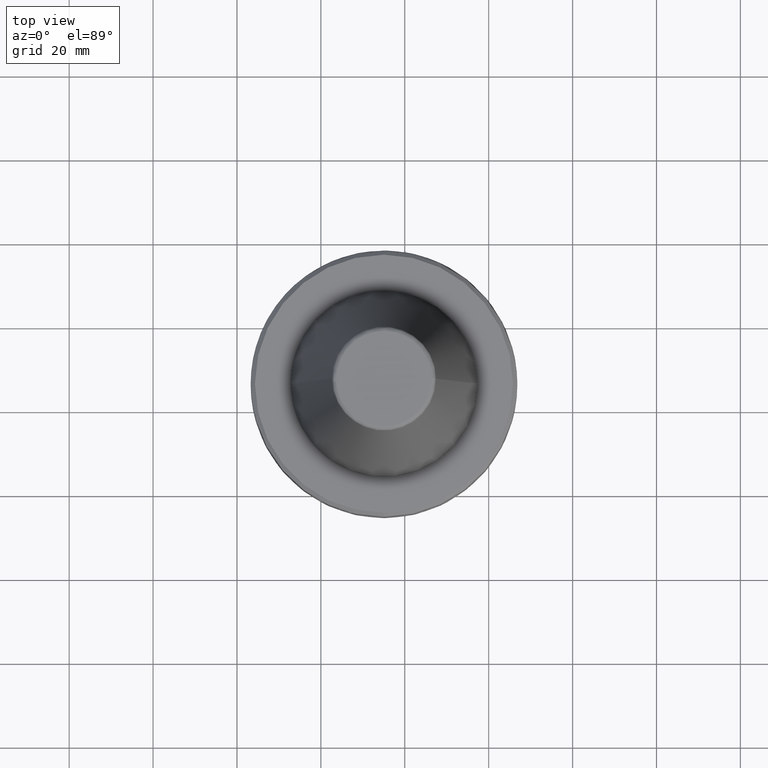
[diagram: clean part render]
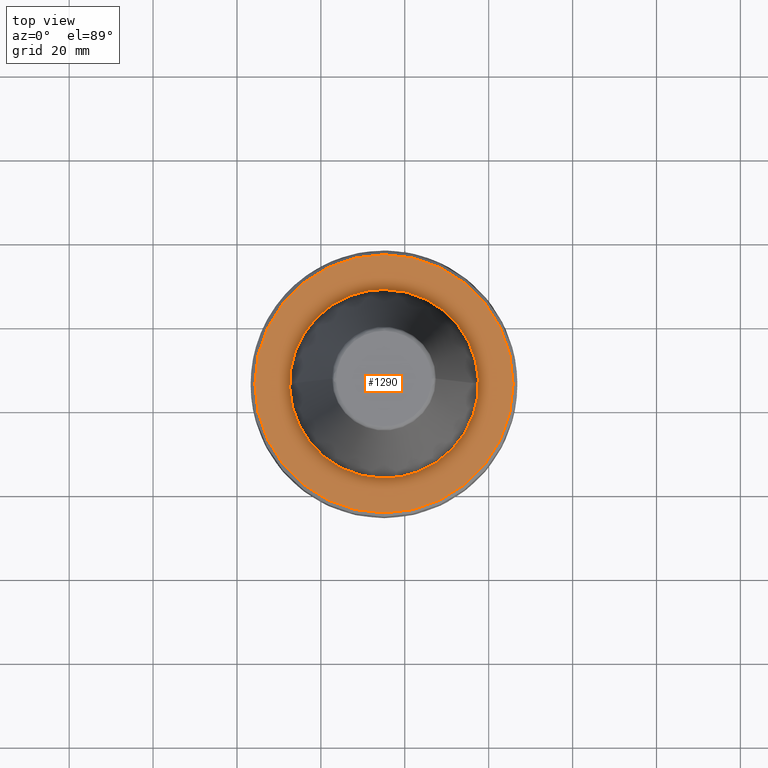
[diagram: same view with one face highlighted and labeled with its STEP entity id]
A machine part, top view. The second image highlights one B-rep face of the part: STEP entity #1290.
In plain terms, the highlighted planar face has unit normal (0, 0, 1).
Its self-contained STEP definition (entity closure, byte-faithful):
#13 = CARTESIAN_POINT ( 'NONE',  ( 62.65414962086474300, 104.2742380259395000, 81.22314626776783100 ) ) ;
#17 = CARTESIAN_POINT ( 'NONE',  ( 62.57152769368608600, 104.2194762248058000, 81.22314626776781700 ) ) ;
#20 = CARTESIAN_POINT ( 'NONE',  ( 89.85767928308449400, 102.5018107672655700, 81.22314626776781700 ) ) ;
#33 = CARTESIAN_POINT ( 'NONE',  ( 63.36992866175331300, 104.7422232382779900, 81.22314626776781700 ) ) ;
#38 = CARTESIAN_POINT ( 'NONE',  ( 85.74092440338276300, 65.67248165962247700, 81.22314626776781700 ) ) ;
#42 = CARTESIAN_POINT ( 'NONE',  ( 88.65794660298517700, 103.4764811899254100, 81.22314626776784500 ) ) ;
#47 = CARTESIAN_POINT ( 'NONE',  ( 66.14891919386136000, 106.1616709498853600, 81.22314626776783100 ) ) ;
#53 = CARTESIAN_POINT ( 'NONE',  ( 87.27688033553640400, 104.3793460824247600, 81.22314626776780200 ) ) ;
#58 = CARTESIAN_POINT ( 'NONE',  ( 84.54997982542086300, 65.09328505467739500, 81.22314626776780200 ) ) ;
#61 = CARTESIAN_POINT ( 'NONE',  ( 87.19870504752289300, 104.4297407762452400, 81.22314626776781700 ) ) ;
#73 = CARTESIAN_POINT ( 'NONE',  ( 83.03059843001516100, 106.5297493338346200, 81.22314626776781700 ) ) ;
#77 = CARTESIAN_POINT ( 'NONE',  ( 66.45537527121696500, 106.2897323070185500, 81.22314626776781700 ) ) ;
#83 = CARTESIAN_POINT ( 'NONE',  ( 86.72187149139439600, 66.24545152261605100, 81.22314626776783100 ) ) ;
#86 = CARTESIAN_POINT ( 'NONE',  ( 64.35087574976535100, 105.3151931012726100, 81.22314626776781700 ) ) ;
#87 = CARTESIAN_POINT ( 'NONE',  ( 87.03846741827089800, 104.5316473161180400, 81.22314626776783100 ) ) ;
#98 = CARTESIAN_POINT ( 'NONE',  ( 65.54182032772695300, 105.8943897062170800, 81.22314626776781700 ) ) ;
#107 = CARTESIAN_POINT ( 'NONE',  ( 86.79728782535725900, 104.6829092724205900, 81.22314626776780200 ) ) ;
#108 = FACE_OUTER_BOUND ( 'NONE', #866, .T. ) ;
#122 = CARTESIAN_POINT ( 'NONE',  ( 87.43765053228240400, 66.71343673495299200, 81.22314626776783100 ) ) ;
#130 = CARTESIAN_POINT ( 'NONE',  ( 84.03483348157212200, 106.1342762753817700, 81.22314626776783100 ) ) ;
#146 = FACE_BOUND ( 'NONE', #1366, .T. ) ;
#151 = CARTESIAN_POINT ( 'NONE',  ( 86.22877339864291500, 105.0246688625809800, 81.22314626776780200 ) ) ;
#153 = CARTESIAN_POINT ( 'NONE',  ( 87.52027245946560200, 66.76819853608952800, 81.22314626776784500 ) ) ;
#157 = CARTESIAN_POINT ( 'NONE',  ( 85.06869637221731800, 105.6634481447191700, 81.22314626776780200 ) ) ;
#159 = CARTESIAN_POINT ( 'NONE',  ( 94.29428593441034000, 97.16980879525721100, 81.22314626776783100 ) ) ;
#162 = CARTESIAN_POINT ( 'NONE',  ( 87.68123995878909200, 66.87641132573394000, 81.22314626776781700 ) ) ;
#173 = CARTESIAN_POINT ( 'NONE',  ( 83.24316371892003000, 106.4475224019299600, 81.22314626776781700 ) ) ;
#180 = CARTESIAN_POINT ( 'NONE',  ( 83.28385588922472500, 106.4315615217865900, 81.22314626776783100 ) ) ;
#184 = EDGE_CURVE ( 'NONE', #194, #2624, #2111, .T. ) ;
#194 = VERTEX_POINT ( 'NONE', #493 ) ;
#201 = CARTESIAN_POINT ( 'NONE',  ( 83.15818297271984200, 106.4805724532110200, 81.22314626776784500 ) ) ;
#218 = CARTESIAN_POINT ( 'NONE',  ( 82.73210719987319800, 106.6417080145375100, 81.22314626776784500 ) ) ;
#229 = CARTESIAN_POINT ( 'NONE',  ( 82.13194888426490100, 106.8544758796008300, 81.22314626776778800 ) ) ;
#240 = VERTEX_POINT ( 'NONE', #1025 ) ;
#243 = CARTESIAN_POINT ( 'NONE',  ( 80.91892883175124500, 107.2354136243585300, 81.22314626776780200 ) ) ;
#255 = CARTESIAN_POINT ( 'NONE',  ( 79.09777183775845800, 107.6260032095905200, 81.22314626776781700 ) ) ;
#262 = CARTESIAN_POINT ( 'NONE',  ( 79.85742006451586400, 107.4854780020894200, 81.22314626776780200 ) ) ;
#270 = CARTESIAN_POINT ( 'NONE',  ( 93.82630072206613600, 97.88558783615641800, 81.22314626776783100 ) ) ;
#281 = CARTESIAN_POINT ( 'NONE',  ( 79.11765152745096000, 107.6223559875607700, 81.22314626776781700 ) ) ;
#310 = CARTESIAN_POINT ( 'NONE',  ( 66.72137537264596600, 106.3972897344154900, 81.22314626776784500 ) ) ;
#328 = CARTESIAN_POINT ( 'NONE',  ( 79.05546663607198400, 107.6337065430116600, 81.22314626776783100 ) ) ;
#336 = CARTESIAN_POINT ( 'NONE',  ( 66.58733644243112300, 106.3434201890682000, 81.22314626776778800 ) ) ;
#340 = CARTESIAN_POINT ( 'NONE',  ( 68.47428908315963300, 107.0345546644794700, 81.22314626776780200 ) ) ;
#347 = CARTESIAN_POINT ( 'NONE',  ( 66.67544896820670900, 106.3789464311632100, 81.22314626776781700 ) ) ;
#352 = CARTESIAN_POINT ( 'NONE',  ( 67.44206893199977100, 106.6826248733195500, 81.22314626776780200 ) ) ;
#353 = CARTESIAN_POINT ( 'NONE',  ( 70.99402831538904500, 63.36167155130206700, 81.22314626776781700 ) ) ;
#364 = CARTESIAN_POINT ( 'NONE',  ( 77.95335832831419500, 107.8099355794101200, 81.22314626776781700 ) ) ;
#385 = CARTESIAN_POINT ( 'NONE',  ( 70.23438008863659800, 63.50219675880115500, 81.22314626776781700 ) ) ;
#394 = CARTESIAN_POINT ( 'NONE',  ( 88.47382798724409300, 67.43248580029808200, 81.22314626776781700 ) ) ;
#395 = CARTESIAN_POINT ( 'NONE',  ( 69.70439416171734600, 107.3560709180702200, 81.22314626776781700 ) ) ;
#402 = CARTESIAN_POINT ( 'NONE',  ( 72.13844182484015700, 63.17773918148252200, 81.22314626776781700 ) ) ;
#403 = CARTESIAN_POINT ( 'NONE',  ( 78.99200054994412300, 107.6451698367929600, 81.22314626776781700 ) ) ;
#404 = CARTESIAN_POINT ( 'NONE',  ( 70.63828157368345700, 107.5582406383046200, 81.22314626776781700 ) ) ;
#410 = CARTESIAN_POINT ( 'NONE',  ( 70.90688553795595800, 107.6098733288288400, 81.22314626776781700 ) ) ;
#414 = CARTESIAN_POINT ( 'NONE',  ( 78.84385503045882600, 107.6712755778310300, 81.22314626776784500 ) ) ;
#417 = CARTESIAN_POINT ( 'NONE',  ( 70.86206852708878000, 107.6014390810272700, 81.22314626776781700 ) ) ;
#420 = CARTESIAN_POINT ( 'NONE',  ( 71.54446810241067600, 63.26675547879256800, 81.22314626776780200 ) ) ;
#421 = CARTESIAN_POINT ( 'NONE',  ( 73.66951177041258300, 107.9938373804463400, 81.22314626776781700 ) ) ;
#427 = CARTESIAN_POINT ( 'NONE',  ( 76.76169983150013800, 107.9468837291179400, 81.22314626776781700 ) ) ;
#442 = CARTESIAN_POINT ( 'NONE',  ( 75.04590007657358800, 62.99383738044630800, 81.22314626776780200 ) ) ;
#443 = CARTESIAN_POINT ( 'NONE',  ( 78.54733205074066400, 107.7209192821000700, 81.22314626776781700 ) ) ;
#445 = CARTESIAN_POINT ( 'NONE',  ( 75.73391645944066400, 107.9938373804463500, 81.22314626776783100 ) ) ;
#447 = CARTESIAN_POINT ( 'NONE',  ( 70.32590875988069000, 107.4945619191749600, 81.22314626776781700 ) ) ;
#458 = CARTESIAN_POINT ( 'NONE',  ( 72.30478887732149900, 107.8686276435706500, 81.22314626776781700 ) ) ;
#471 = CARTESIAN_POINT ( 'NONE',  ( 75.04590007657358800, 107.9938373804463200, 81.22314626776780200 ) ) ;
#487 = CARTESIAN_POINT ( 'NONE',  ( 75.04590007657358800, 107.9938373804463200, 81.22314626776780200 ) ) ;
#493 = CARTESIAN_POINT ( 'NONE',  ( 75.04590007657358800, 62.99383738044630800, 81.22314626776780200 ) ) ;
#498 = CARTESIAN_POINT ( 'NONE',  ( 70.93058987417499800, 107.6142953655418600, 81.22314626776780200 ) ) ;
#564 = CARTESIAN_POINT ( 'NONE',  ( 87.92150577537155700, 67.04018314178205200, 81.22314626776781700 ) ) ;
#608 = CARTESIAN_POINT ( 'NONE',  ( 56.16039137459461700, 97.72481763940734800, 81.22314626776780200 ) ) ;
#614 = CARTESIAN_POINT ( 'NONE',  ( 67.95985126888922400, 64.13319888128906100, 81.22314626776781700 ) ) ;
#618 = CARTESIAN_POINT ( 'NONE',  ( 57.06325626710312100, 99.10588390688654700, 81.22314626776785900 ) ) ;
#621 = CARTESIAN_POINT ( 'NONE',  ( 58.03792668970279300, 100.3056165869256800, 81.22314626776783100 ) ) ;
#643 = CARTESIAN_POINT ( 'NONE',  ( 92.05387346340724300, 70.68205817394483900, 81.22314626776784500 ) ) ;
#653 = CARTESIAN_POINT ( 'NONE',  ( 89.54528030371022900, 68.25776480161239600, 81.22314626776784500 ) ) ;
#667 = CARTESIAN_POINT ( 'NONE',  ( 90.40676724820276900, 69.03487311865109200, 81.22314626776781700 ) ) ;
#738 = CARTESIAN_POINT ( 'NONE',  ( 93.02854388608821500, 71.88179085406528700, 81.22314626776783100 ) ) ;
#758 = ORIENTED_EDGE ( 'NONE', *, *, #2819, .F. ) ;
#762 = EDGE_CURVE ( 'NONE', #240, #2336, #963, .T. ) ;
#788 = CARTESIAN_POINT ( 'NONE',  ( 93.98180347237180900, 73.34103240949876600, 81.22314626776778800 ) ) ;
#795 = DIRECTION ( 'NONE',  ( -1.000000000000000000, 0.0000000000000000000, 0.0000000000000000000 ) ) ;
#797 = DIRECTION ( 'NONE',  ( -0.0000000000000000000, -0.0000000000000000000, -1.000000000000000000 ) ) ;
#799 = CARTESIAN_POINT ( 'NONE',  ( 93.93140877854980900, 73.26285712148157400, 81.22314626776780200 ) ) ;
#806 = CARTESIAN_POINT ( 'NONE',  ( 75.04590007657358800, 85.49383738044632300, 81.22314626776777400 ) ) ;
#813 = CARTESIAN_POINT ( 'NONE',  ( 67.06120172313417500, 64.45792542705717700, 81.22314626776780200 ) ) ;
#815 = CARTESIAN_POINT ( 'NONE',  ( 53.68526157740659200, 92.57988618809807200, 81.22314626776780200 ) ) ;
#829 = CARTESIAN_POINT ( 'NONE',  ( 66.93361718042861200, 64.50710230768118000, 81.22314626776781700 ) ) ;
#866 = EDGE_LOOP ( 'NONE', ( #758, #2158 ) ) ;
#900 = CARTESIAN_POINT ( 'NONE',  ( 94.57673155870450900, 74.31096405838651700, 81.22314626776781700 ) ) ;
#908 = DIRECTION ( 'NONE',  ( -0.0000000000000000000, -0.0000000000000000000, -1.000000000000000000 ) ) ;
#913 = CARTESIAN_POINT ( 'NONE',  ( 94.23497196854566500, 73.74244963166823700, 81.22314626776781700 ) ) ;
#926 = CARTESIAN_POINT ( 'NONE',  ( 95.21551084084144600, 75.47104108481528300, 81.22314626776781700 ) ) ;
#963 = CIRCLE ( 'NONE', #2142, 30.77499999995865600 ) ;
#980 = CARTESIAN_POINT ( 'NONE',  ( 94.08371001224391300, 73.50127003875239500, 81.22314626776781700 ) ) ;
#990 = CARTESIAN_POINT ( 'NONE',  ( 95.68633897150616000, 76.50490397545506500, 81.22314626776781700 ) ) ;
#1001 = CARTESIAN_POINT ( 'NONE',  ( 75.04590007657358800, 85.49383738044632300, 81.22314626776777400 ) ) ;
#1010 = AXIS2_PLACEMENT_3D ( 'NONE', #1001, #908, #2462 ) ;
#1025 = CARTESIAN_POINT ( 'NONE',  ( 75.04590007657358800, 54.71883738048766300, 81.22314626776777400 ) ) ;
#1058 = CARTESIAN_POINT ( 'NONE',  ( 95.98362421791401300, 77.25588156779474500, 81.22314626776781700 ) ) ;
#1130 = CARTESIAN_POINT ( 'NONE',  ( 95.99958509805588800, 77.29657373809475000, 81.22314626776784500 ) ) ;
#1139 = ORIENTED_EDGE ( 'NONE', *, *, #3070, .T. ) ;
#1144 = CARTESIAN_POINT ( 'NONE',  ( 96.03263514933560400, 77.38155448428999300, 81.22314626776781700 ) ) ;
#1173 = CARTESIAN_POINT ( 'NONE',  ( 71.09979960320424700, 63.34250492409965000, 81.22314626776780200 ) ) ;
#1177 = CARTESIAN_POINT ( 'NONE',  ( 74.35788369371194100, 62.99383738044632300, 81.22314626776781700 ) ) ;
#1192 = CARTESIAN_POINT ( 'NONE',  ( 93.77153892092924500, 97.96820976334011300, 81.22314626776783100 ) ) ;
#1237 = CARTESIAN_POINT ( 'NONE',  ( 93.66332613128382400, 98.12917726266519500, 81.22314626776781700 ) ) ;
#1251 = CARTESIAN_POINT ( 'NONE',  ( 70.97414862569606000, 63.36531877333190000, 81.22314626776781700 ) ) ;
#1290 = ADVANCED_FACE ( 'NONE', ( #146, #108 ), #2846, .T. ) ;
#1291 = CARTESIAN_POINT ( 'NONE',  ( 96.19377071065622400, 77.80763025711452500, 81.22314626776781700 ) ) ;
#1323 = CARTESIAN_POINT ( 'NONE',  ( 54.25000515000083100, 76.90331257509005500, 81.22314626776784500 ) ) ;
#1347 = CARTESIAN_POINT ( 'NONE',  ( 96.08181202995726300, 77.50913902698746900, 81.22314626776783100 ) ) ;
#1366 = EDGE_LOOP ( 'NONE', ( #3112, #1139 ) ) ;
#1422 = CARTESIAN_POINT ( 'NONE',  ( 96.40653857571348300, 78.40778857269977200, 81.22314626776780200 ) ) ;
#1435 = CARTESIAN_POINT ( 'NONE',  ( 75.04590007657358800, 107.9938373804463200, 81.22314626776780200 ) ) ;
#1466 = CARTESIAN_POINT ( 'NONE',  ( 67.35969295327808500, 64.34596674635362500, 81.22314626776781700 ) ) ;
#1508 = CARTESIAN_POINT ( 'NONE',  ( 52.95104915450591000, 81.24280916313884400, 81.22314626776781700 ) ) ;
#1522 = CARTESIAN_POINT ( 'NONE',  ( 53.04517553784430100, 80.77384606375690600, 81.22314626776780200 ) ) ;
#1524 = CARTESIAN_POINT ( 'NONE',  ( 52.93829837599255200, 81.31000583096209800, 81.22314626776783100 ) ) ;
#1533 = CARTESIAN_POINT ( 'NONE',  ( 52.92986412819104200, 81.35482284182899100, 81.22314626776783100 ) ) ;
#1536 = CARTESIAN_POINT ( 'NONE',  ( 96.78747632046629700, 79.62080862519498200, 81.22314626776780200 ) ) ;
#1550 = CARTESIAN_POINT ( 'NONE',  ( 70.79487185926514300, 107.5886883025138000, 81.22314626776781700 ) ) ;
#1564 = CARTESIAN_POINT ( 'NONE',  ( 52.67114225968574500, 82.75255086885809400, 81.22314626776784500 ) ) ;
#1567 = CARTESIAN_POINT ( 'NONE',  ( 52.98149681871490900, 81.08621887755808200, 81.22314626776783100 ) ) ;
#1600 = CARTESIAN_POINT ( 'NONE',  ( 97.17441868368844400, 81.42208592957030100, 81.22314626776781700 ) ) ;
#1608 = CARTESIAN_POINT ( 'NONE',  ( 52.54588386177716300, 86.18176612906810900, 81.22314626776784500 ) ) ;
#1610 = CARTESIAN_POINT ( 'NONE',  ( 97.22334492455746600, 81.69591837027438400, 81.22314626776780200 ) ) ;
#1621 = CARTESIAN_POINT ( 'NONE',  ( 97.03754069820558900, 80.68231739246201100, 81.22314626776783100 ) ) ;
#1631 = CARTESIAN_POINT ( 'NONE',  ( 52.72978059568943400, 88.40118061223994100, 81.22314626776778800 ) ) ;
#1642 = CARTESIAN_POINT ( 'NONE',  ( 93.49955431523429200, 98.36944307924980500, 81.22314626776781700 ) ) ;
#1664 = CARTESIAN_POINT ( 'NONE',  ( 71.03633351707588900, 63.35396821788103200, 81.22314626776784500 ) ) ;
#1669 = CARTESIAN_POINT ( 'NONE',  ( 97.17806691122514500, 81.44197105360856900, 81.22314626776781700 ) ) ;
#1676 = CARTESIAN_POINT ( 'NONE',  ( 52.54593250616644400, 84.11797988320272200, 81.22314626776783100 ) ) ;
#1687 = CARTESIAN_POINT ( 'NONE',  ( 52.92544158450557700, 81.37852991730297000, 81.22314626776781700 ) ) ;
#1814 = CARTESIAN_POINT ( 'NONE',  ( 97.19723596906314400, 81.54775547799432900, 81.22314626776780200 ) ) ;
#1834 = CARTESIAN_POINT ( 'NONE',  ( 52.90602892674565500, 89.50339319961483400, 81.22314626776783100 ) ) ;
#1849 = CARTESIAN_POINT ( 'NONE',  ( 97.18577122640131400, 81.48428156127181400, 81.22314626776783100 ) ) ;
#1859 = CARTESIAN_POINT ( 'NONE',  ( 97.27299439267912400, 81.99247250121067100, 81.22314626776781700 ) ) ;
#1873 = CARTESIAN_POINT ( 'NONE',  ( 97.36201955745477200, 82.58649414858821600, 81.22314626776781700 ) ) ;
#1885 = CARTESIAN_POINT ( 'NONE',  ( 63.29451232781436700, 66.30476548846229400, 81.22314626776780200 ) ) ;
#1909 = CARTESIAN_POINT ( 'NONE',  ( 66.80794426392047600, 64.55611323910685000, 81.22314626776781700 ) ) ;
#1918 = AXIS2_PLACEMENT_3D ( 'NONE', #2789, #2858, #2752 ) ;
#1950 = CARTESIAN_POINT ( 'NONE',  ( 52.86845522858880700, 89.29175639059812400, 81.22314626776781700 ) ) ;
#1964 = CARTESIAN_POINT ( 'NONE',  ( 52.91373324192197500, 89.54570370728104900, 81.22314626776783100 ) ) ;
#1985 = CARTESIAN_POINT ( 'NONE',  ( 97.49897480113503400, 83.77819098536306800, 81.22314626776781700 ) ) ;
#2001 = CARTESIAN_POINT ( 'NONE',  ( 97.14075099864244600, 89.74486559775067500, 81.22314626776781700 ) ) ;
#2026 = CARTESIAN_POINT ( 'NONE',  ( 52.89456418408355600, 89.43991928288787100, 81.22314626776780200 ) ) ;
#2028 = CARTESIAN_POINT ( 'NONE',  ( 97.54591629136774600, 84.80590863177542400, 81.22314626776780200 ) ) ;
#2062 = CARTESIAN_POINT ( 'NONE',  ( 52.81880576046630400, 88.99520225964435800, 81.22314626776780200 ) ) ;
#2063 = CARTESIAN_POINT ( 'NONE',  ( 52.91738146945942800, 89.56558883132461800, 81.22314626776783100 ) ) ;
#2074 = CARTESIAN_POINT ( 'NONE',  ( 97.42065789346594300, 88.23512389198211300, 81.22314626776783100 ) ) ;
#2111 = B_SPLINE_CURVE_WITH_KNOTS ( 'NONE', 3,
 ( #442, #1177, #2877, #402, #420, #2257, #1173, #1664, #353, #1251, #385, #2957, #614, #1466, #813, #829, #2273, #1909, #2550, #2125, #2719, #1885, #2120, #2644, #3059, #2926, #2476, #2499, #2178, #2429, #2712, #2732, #2764, #2832, #2220, #2238, #2511, #2626, #1323, #2754, #2965, #2226, #2258, #2314, #2786, #1522, #1567, #1508, #1524, #1533, #1687, #1564, #1676, #1608, #2577, #1631, #2062, #1950, #2026, #1834, #1964, #2063, #2322, #3127, #815, #3111, #3115, #3124, #3133, #3146, #3150, #3154, #3159, #3161, #3163, #3169, #608, #618, #621, #3172, #3180, #3183, #3192, #3197, #17, #13, #33, #86, #98, #47, #77, #336, #347, #310, #352, #340, #395, #447, #404, #1550, #417, #410, #498, #458, #421, #487 ),
 .UNSPECIFIED., .F., .F.,
 ( 4, 1, 1, 1, 1, 1, 2, 2, 1, 1, 1, 1, 2, 2, 1, 1, 1, 2, 2, 2, 1, 1, 1, 2, 2, 1, 1, 1, 1, 2, 2, 1, 1, 1, 1, 1, 2, 2, 2, 1, 1, 1, 1, 1, 2, 2, 1, 1, 1, 1, 2, 2, 1, 1, 1, 2, 2, 2, 1, 1, 1, 2, 2, 1, 1, 1, 1, 2, 2, 1, 1, 1, 1, 1, 2, 2, 4 ),
 ( 0.0000000000000000000, 0.03124999999997436100, 0.04687499999996154500, 0.05468749999995509100, 0.05859374999995186500, 0.06054687499995030400, 0.06152343749994957500, 0.06249999999994886000, 0.09374999999994070000, 0.1093749999999367200, 0.1171874999999350000, 0.1210937499999341400, 0.1230468749999335300, 0.1249999999999329400, 0.1562499999999209000, 0.1718749999999150100, 0.1796874999999116800, 0.1835937499999096300, 0.1874999999999075500, 0.2499999999998742700, 0.2812499999998577800, 0.2968749999998492300, 0.3046874999998450100, 0.3085937499998430100, 0.3124999999998410200, 0.3437499999998276900, 0.3593749999998210300, 0.3671874999998177000, 0.3710937499998160900, 0.3730468749998155400, 0.3749999999998149800, 0.4062499999998113700, 0.4218749999998095400, 0.4296874999998088800, 0.4335937499998085400, 0.4355468749998084300, 0.4365234374998080400, 0.4374999999998077100, 0.4999999999998112600, 0.5312499999998133700, 0.5468749999998144800, 0.5546874999998149300, 0.5585937499998151500, 0.5605468749998152600, 0.5615234374998149300, 0.5624999999998147000, 0.5937499999998223600, 0.6093749999998262500, 0.6171874999998281400, 0.6210937499998288000, 0.6230468749998295800, 0.6249999999998302500, 0.6562499999998467900, 0.6718749999998551200, 0.6796874999998590000, 0.6835937499998606700, 0.6874999999998623300, 0.7499999999998847600, 0.7812499999998961900, 0.7968749999999015200, 0.8046874999999041900, 0.8085937499999055200, 0.8124999999999069600, 0.8437499999999171800, 0.8593749999999221700, 0.8671874999999246200, 0.8710937499999262800, 0.8730468749999273900, 0.8749999999999286100, 0.9062499999999451500, 0.9218749999999532600, 0.9296874999999574800, 0.9335937499999594800, 0.9355468749999604800, 0.9365234374999613600, 0.9374999999999622500, 1.000000000000000000 ),
 .UNSPECIFIED. ) ;
#2120 = CARTESIAN_POINT ( 'NONE',  ( 63.05333273489105700, 66.45602744476882200, 81.22314626776783100 ) ) ;
#2125 = CARTESIAN_POINT ( 'NONE',  ( 65.02310378098580700, 65.32422661615122200, 81.22314626776781700 ) ) ;
#2135 = CARTESIAN_POINT ( 'NONE',  ( 93.10725165671564700, 98.92176529112629200, 81.22314626776781700 ) ) ;
#2142 = AXIS2_PLACEMENT_3D ( 'NONE', #806, #797, #795 ) ;
#2157 = CARTESIAN_POINT ( 'NONE',  ( 97.16635856864151300, 89.60914484359048500, 81.22314626776783100 ) ) ;
#2158 = ORIENTED_EDGE ( 'NONE', *, *, #762, .F. ) ;
#2173 = CARTESIAN_POINT ( 'NONE',  ( 97.54586764698524300, 86.86969487778819100, 81.22314626776783100 ) ) ;
#2178 = CARTESIAN_POINT ( 'NONE',  ( 57.80982749774068500, 70.99445715331306400, 81.22314626776780200 ) ) ;
#2220 = CARTESIAN_POINT ( 'NONE',  ( 55.79751421874055900, 73.81786596562702100, 81.22314626776784500 ) ) ;
#2226 = CARTESIAN_POINT ( 'NONE',  ( 54.14244772260449400, 77.16931267651837300, 81.22314626776781700 ) ) ;
#2238 = CARTESIAN_POINT ( 'NONE',  ( 55.22454435574487500, 74.79881305363973400, 81.22314626776780200 ) ) ;
#2257 = CARTESIAN_POINT ( 'NONE',  ( 71.24794512269059500, 63.31639918306164800, 81.22314626776784500 ) ) ;
#2258 = CARTESIAN_POINT ( 'NONE',  ( 53.85711258369952500, 77.89000623587712400, 81.22314626776783100 ) ) ;
#2273 = CARTESIAN_POINT ( 'NONE',  ( 66.84863643422787000, 64.54015235896241600, 81.22314626776784500 ) ) ;
#2279 = CARTESIAN_POINT ( 'NONE',  ( 75.04590007657358800, 116.2688373804049700, 81.22314626776777400 ) ) ;
#2314 = CARTESIAN_POINT ( 'NONE',  ( 53.50518279253892500, 78.92222638704041100, 81.22314626776780200 ) ) ;
#2322 = CARTESIAN_POINT ( 'NONE',  ( 53.05425945492100200, 90.30535736835844300, 81.22314626776781700 ) ) ;
#2336 = VERTEX_POINT ( 'NONE', #2279 ) ;
#2357 = CARTESIAN_POINT ( 'NONE',  ( 97.16193602495653200, 89.63285191906274500, 81.22314626776781700 ) ) ;
#2422 = CARTESIAN_POINT ( 'NONE',  ( 92.28197265539928700, 99.99321760759549700, 81.22314626776778800 ) ) ;
#2429 = CARTESIAN_POINT ( 'NONE',  ( 56.98454849642615700, 72.06590946977829000, 81.22314626776781700 ) ) ;
#2462 = DIRECTION ( 'NONE',  ( -1.000000000000000000, 0.0000000000000000000, 0.0000000000000000000 ) ) ;
#2476 = CARTESIAN_POINT ( 'NONE',  ( 60.23412087007088900, 68.48586399360890200, 81.22314626776783100 ) ) ;
#2499 = CARTESIAN_POINT ( 'NONE',  ( 58.58693581477896100, 70.13297020881904600, 81.22314626776783100 ) ) ;
#2511 = CARTESIAN_POINT ( 'NONE',  ( 54.64534775080099400, 75.98975763160096600, 81.22314626776781700 ) ) ;
#2550 = CARTESIAN_POINT ( 'NONE',  ( 66.05696667160701500, 64.85339848549816100, 81.22314626776780200 ) ) ;
#2552 = CARTESIAN_POINT ( 'NONE',  ( 96.58661736061785100, 92.06544837382642800, 81.22314626776780200 ) ) ;
#2577 = CARTESIAN_POINT ( 'NONE',  ( 52.59282535200824800, 87.20948377544361600, 81.22314626776781700 ) ) ;
#2586 = CARTESIAN_POINT ( 'NONE',  ( 97.15350177715532700, 89.67766892992877100, 81.22314626776783100 ) ) ;
#2595 = CIRCLE ( 'NONE', #1010, 30.77499999995865600 ) ;
#2609 = CARTESIAN_POINT ( 'NONE',  ( 97.11030333443451900, 89.90145588332848100, 81.22314626776783100 ) ) ;
#2621 = CARTESIAN_POINT ( 'NONE',  ( 97.04662461530712400, 90.21382869712442700, 81.22314626776783100 ) ) ;
#2624 = VERTEX_POINT ( 'NONE', #1435 ) ;
#2626 = CARTESIAN_POINT ( 'NONE',  ( 54.37806650713348900, 76.59685649773483400, 81.22314626776781700 ) ) ;
#2633 = CARTESIAN_POINT ( 'NONE',  ( 96.90813361420582300, 90.83534329527715600, 81.22314626776780200 ) ) ;
#2644 = CARTESIAN_POINT ( 'NONE',  ( 62.89309510563204200, 66.55793398464430800, 81.22314626776783100 ) ) ;
#2712 = CARTESIAN_POINT ( 'NONE',  ( 56.59224583790977200, 72.61823168164986000, 81.22314626776783100 ) ) ;
#2719 = CARTESIAN_POINT ( 'NONE',  ( 63.86302675454621900, 65.96300589829498100, 81.22314626776780200 ) ) ;
#2732 = CARTESIAN_POINT ( 'NONE',  ( 56.42847402186149700, 72.85849749823171400, 81.22314626776783100 ) ) ;
#2749 = CARTESIAN_POINT ( 'NONE',  ( 75.04590007657358800, 62.99383738044630800, 81.22314626776780200 ) ) ;
#2752 = DIRECTION ( 'NONE',  ( 1.000000000000000000, 0.0000000000000000000, -0.0000000000000000000 ) ) ;
#2754 = CARTESIAN_POINT ( 'NONE',  ( 54.19631726795135800, 77.03527374630405700, 81.22314626776780200 ) ) ;
#2761 = CARTESIAN_POINT ( 'NONE',  ( 76.42228838268215400, 62.99383738044630800, 81.22314626776778800 ) ) ;
#2764 = CARTESIAN_POINT ( 'NONE',  ( 56.32026123221698600, 73.01946499755476300, 81.22314626776781700 ) ) ;
#2782 = CARTESIAN_POINT ( 'NONE',  ( 96.23468756945315800, 93.09766852500077100, 81.22314626776781700 ) ) ;
#2786 = CARTESIAN_POINT ( 'NONE',  ( 53.18366653894856500, 80.15233146559610600, 81.22314626776780200 ) ) ;
#2789 = CARTESIAN_POINT ( 'NONE',  ( 45.36189167057358400, 54.51712135444632400, 81.22314626776781700 ) ) ;
#2809 = CARTESIAN_POINT ( 'NONE',  ( 95.94935243054233400, 93.81836208437522400, 81.22314626776780200 ) ) ;
#2819 = EDGE_CURVE ( 'NONE', #2336, #240, #2595, .T. ) ;
#2832 = CARTESIAN_POINT ( 'NONE',  ( 56.26549943108060600, 73.10208692473730700, 81.22314626776781700 ) ) ;
#2846 = PLANE ( 'NONE',  #1918 ) ;
#2853 = CARTESIAN_POINT ( 'NONE',  ( 95.44645240235104200, 94.99791712928063700, 81.22314626776780200 ) ) ;
#2857 = CARTESIAN_POINT ( 'NONE',  ( 77.78701127577326700, 63.11904711732201200, 81.22314626776780200 ) ) ;
#2858 = DIRECTION ( 'NONE',  ( 0.0000000000000000000, 0.0000000000000000000, 1.000000000000000000 ) ) ;
#2865 = CARTESIAN_POINT ( 'NONE',  ( 79.16121027897297300, 63.37337939535076000, 81.22314626776783100 ) ) ;
#2877 = CARTESIAN_POINT ( 'NONE',  ( 73.33010032165653100, 63.04079103177471000, 81.22314626776781700 ) ) ;
#2882 = CARTESIAN_POINT ( 'NONE',  ( 79.18491461519003800, 63.37780143206327200, 81.22314626776783100 ) ) ;
#2894 = CARTESIAN_POINT ( 'NONE',  ( 79.22973162605606500, 63.38623567986432800, 81.22314626776780200 ) ) ;
#2926 = CARTESIAN_POINT ( 'NONE',  ( 61.43385355018142500, 67.51119357093782000, 81.22314626776783100 ) ) ;
#2938 = CARTESIAN_POINT ( 'NONE',  ( 79.29692829387802500, 63.39898645837698200, 81.22314626776780200 ) ) ;
#2947 = CARTESIAN_POINT ( 'NONE',  ( 95.93100912729111900, 93.86428848881207900, 81.22314626776781700 ) ) ;
#2956 = CARTESIAN_POINT ( 'NONE',  ( 79.45351857945588800, 63.42943412258443200, 81.22314626776781700 ) ) ;
#2957 = CARTESIAN_POINT ( 'NONE',  ( 69.17287132140521100, 63.75226113653052800, 81.22314626776781700 ) ) ;
#2965 = CARTESIAN_POINT ( 'NONE',  ( 54.16079102585651100, 77.12338627207952900, 81.22314626776778800 ) ) ;
#2984 = CARTESIAN_POINT ( 'NONE',  ( 79.76589139325190600, 63.49311284171103900, 81.22314626776781700 ) ) ;
#2997 = CARTESIAN_POINT ( 'NONE',  ( 80.38740599140480500, 63.63160384281101000, 81.22314626776781700 ) ) ;
#3021 = CARTESIAN_POINT ( 'NONE',  ( 81.61751106995421900, 63.95312009639794600, 81.22314626776781700 ) ) ;
#3037 = CARTESIAN_POINT ( 'NONE',  ( 95.89548288519672800, 93.95240101458654200, 81.22314626776781700 ) ) ;
#3056 = CARTESIAN_POINT ( 'NONE',  ( 91.50486433836410100, 100.8547045520826800, 81.22314626776783100 ) ) ;
#3059 = CARTESIAN_POINT ( 'NONE',  ( 62.81491981760955000, 66.60832867846973200, 81.22314626776781700 ) ) ;
#3070 = EDGE_CURVE ( 'NONE', #2624, #194, #3145, .T. ) ;
#3081 = CARTESIAN_POINT ( 'NONE',  ( 95.71373364601656400, 94.39081826315138800, 81.22314626776780200 ) ) ;
#3094 = CARTESIAN_POINT ( 'NONE',  ( 95.84179500314786500, 94.08436218579916500, 81.22314626776783100 ) ) ;
#3108 = CARTESIAN_POINT ( 'NONE',  ( 82.64973122112834900, 64.30504988756442200, 81.22314626776781700 ) ) ;
#3111 = CARTESIAN_POINT ( 'NONE',  ( 53.89802944247517000, 93.18004450372278300, 81.22314626776777400 ) ) ;
#3112 = ORIENTED_EDGE ( 'NONE', *, *, #184, .T. ) ;
#3113 = CARTESIAN_POINT ( 'NONE',  ( 83.37042478050246100, 64.59038502647771900, 81.22314626776781700 ) ) ;
#3115 = CARTESIAN_POINT ( 'NONE',  ( 54.00998812318141500, 93.47853573387554600, 81.22314626776781700 ) ) ;
#3124 = CARTESIAN_POINT ( 'NONE',  ( 54.05916500380661900, 93.60612027658533000, 81.22314626776778800 ) ) ;
#3125 = CARTESIAN_POINT ( 'NONE',  ( 94.86725579740878800, 96.18886170723817500, 81.22314626776780200 ) ) ;
#3127 = CARTESIAN_POINT ( 'NONE',  ( 53.30432383264478300, 91.36686613557125700, 81.22314626776781700 ) ) ;
#3133 = CARTESIAN_POINT ( 'NONE',  ( 54.09221505508877200, 93.69110102278905600, 81.22314626776783100 ) ) ;
#3145 = B_SPLINE_CURVE_WITH_KNOTS ( 'NONE', 3,
 ( #471, #445, #427, #364, #443, #414, #403, #328, #255, #281, #262, #243, #229, #218, #73, #201, #173, #180, #130, #157, #151, #107, #87, #61, #53, #42, #20, #3056, #2422, #2135, #1642, #1237, #1192, #270, #159, #3125, #2853, #3081, #3094, #3037, #2947, #2809, #2782, #2552, #2633, #2621, #2609, #2001, #2586, #2357, #2157, #2074, #2173, #2028, #1985, #1873, #1859, #1610, #1814, #1849, #1669, #1600, #1621, #1536, #1422, #1291, #1347, #1144, #1130, #1058, #990, #926, #900, #913, #980, #788, #799, #738, #643, #667, #653, #394, #564, #162, #153, #122, #83, #38, #58, #3199, #3184, #3175, #3164, #3113, #3108, #3021, #2997, #2984, #2956, #2938, #2894, #2882, #2865, #2857, #2761, #2749 ),
 .UNSPECIFIED., .F., .F.,
 ( 4, 1, 1, 1, 1, 1, 2, 2, 1, 1, 1, 1, 2, 2, 1, 1, 1, 2, 2, 2, 1, 1, 1, 2, 2, 1, 1, 1, 1, 2, 2, 1, 1, 1, 1, 1, 2, 2, 2, 1, 1, 1, 1, 1, 2, 2, 1, 1, 1, 1, 2, 2, 1, 1, 1, 2, 2, 2, 1, 1, 1, 2, 2, 1, 1, 1, 1, 2, 2, 1, 1, 1, 1, 1, 2, 2, 4 ),
 ( 0.0000000000000000000, 0.03124999999999549700, 0.04687499999999324200, 0.05468749999999215900, 0.05859374999999130600, 0.06054687499999093800, 0.06152343749999038300, 0.06249999999998983500, 0.09374999999996878900, 0.1093749999999581700, 0.1171874999999532500, 0.1210937499999507900, 0.1230468749999491700, 0.1249999999999475600, 0.1562499999999193700, 0.1718749999999051600, 0.1796874999998977800, 0.1835937499998942500, 0.1874999999998907300, 0.2499999999998344700, 0.2812499999998063800, 0.2968749999997924400, 0.3046874999997853400, 0.3085937499997816200, 0.3124999999997779000, 0.3437499999997456500, 0.3593749999997296600, 0.3671874999997214500, 0.3710937499997174500, 0.3730468749997156200, 0.3749999999997137800, 0.4062499999996867500, 0.4218749999996733700, 0.4296874999996669900, 0.4335937499996640500, 0.4355468749996628800, 0.4365234374996625500, 0.4374999999996621600, 0.4999999999996633200, 0.5312499999996638200, 0.5468749999996641600, 0.5546874999996640500, 0.5585937499996639400, 0.5605468749996641600, 0.5615234374996646000, 0.5624999999996650500, 0.5937499999996847000, 0.6093749999996944700, 0.6171874999996993500, 0.6210937499997017900, 0.6230468749997029000, 0.6249999999997041300, 0.6562499999997248900, 0.6718749999997352100, 0.6796874999997403200, 0.6835937499997428700, 0.6874999999997454300, 0.7499999999997862800, 0.7812499999998067100, 0.7968749999998168100, 0.8046874999998218100, 0.8085937499998238100, 0.8124999999998259200, 0.8437499999998417900, 0.8593749999998499000, 0.8671874999998542300, 0.8710937499998565600, 0.8730468749998580000, 0.8749999999998593300, 0.9062499999998843100, 0.9218749999998966400, 0.9296874999999028600, 0.9335937499999059600, 0.9355468749999079600, 0.9365234374999088500, 0.9374999999999098500, 1.000000000000000000 ),
 .UNSPECIFIED. ) ;
#3146 = CARTESIAN_POINT ( 'NONE',  ( 54.10817593523421500, 93.73179319309926400, 81.22314626776780200 ) ) ;
#3150 = CARTESIAN_POINT ( 'NONE',  ( 54.40546118162407700, 94.48277078541573800, 81.22314626776783100 ) ) ;
#3154 = CARTESIAN_POINT ( 'NONE',  ( 54.87628931227607200, 95.51663367603910600, 81.22314626776780200 ) ) ;
#3159 = CARTESIAN_POINT ( 'NONE',  ( 55.51506859442042000, 96.67671070247743600, 81.22314626776780200 ) ) ;
#3161 = CARTESIAN_POINT ( 'NONE',  ( 55.85682818458854400, 97.24522512920768200, 81.22314626776780200 ) ) ;
#3163 = CARTESIAN_POINT ( 'NONE',  ( 56.00809014089542600, 97.48640472213017500, 81.22314626776780200 ) ) ;
#3164 = CARTESIAN_POINT ( 'NONE',  ( 83.41635118494055200, 64.60872832972960100, 81.22314626776781700 ) ) ;
#3169 = CARTESIAN_POINT ( 'NONE',  ( 56.10999668077126000, 97.64664235138855000, 81.22314626776780200 ) ) ;
#3172 = CARTESIAN_POINT ( 'NONE',  ( 59.68503290496303000, 101.9528016422526500, 81.22314626776783100 ) ) ;
#3175 = CARTESIAN_POINT ( 'NONE',  ( 83.50446371071618000, 64.64425457182474600, 81.22314626776781700 ) ) ;
#3180 = CARTESIAN_POINT ( 'NONE',  ( 60.54651984946955400, 102.7299099592996600, 81.22314626776783100 ) ) ;
#3183 = CARTESIAN_POINT ( 'NONE',  ( 61.61797216592750500, 103.5551889606091200, 81.22314626776781700 ) ) ;
#3184 = CARTESIAN_POINT ( 'NONE',  ( 83.63642488193049500, 64.69794245387470300, 81.22314626776783100 ) ) ;
#3192 = CARTESIAN_POINT ( 'NONE',  ( 62.17029437778987200, 103.9474916191190600, 81.22314626776781700 ) ) ;
#3197 = CARTESIAN_POINT ( 'NONE',  ( 62.41056019436665300, 104.1112634351638300, 81.22314626776780200 ) ) ;
#3199 = CARTESIAN_POINT ( 'NONE',  ( 83.94288095928622800, 64.82600381100833400, 81.22314626776780200 ) ) ;